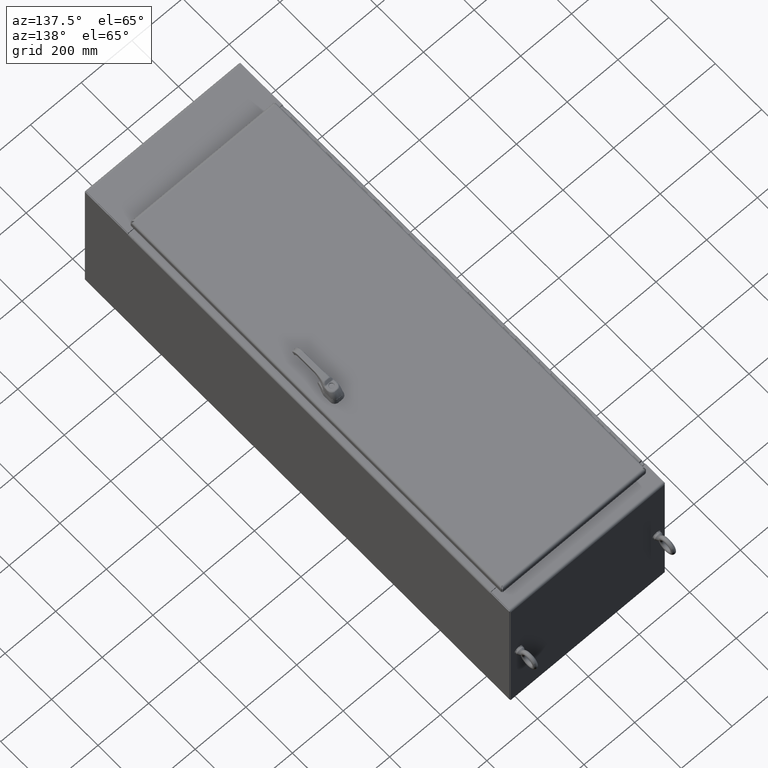
[diagram: clean part render]
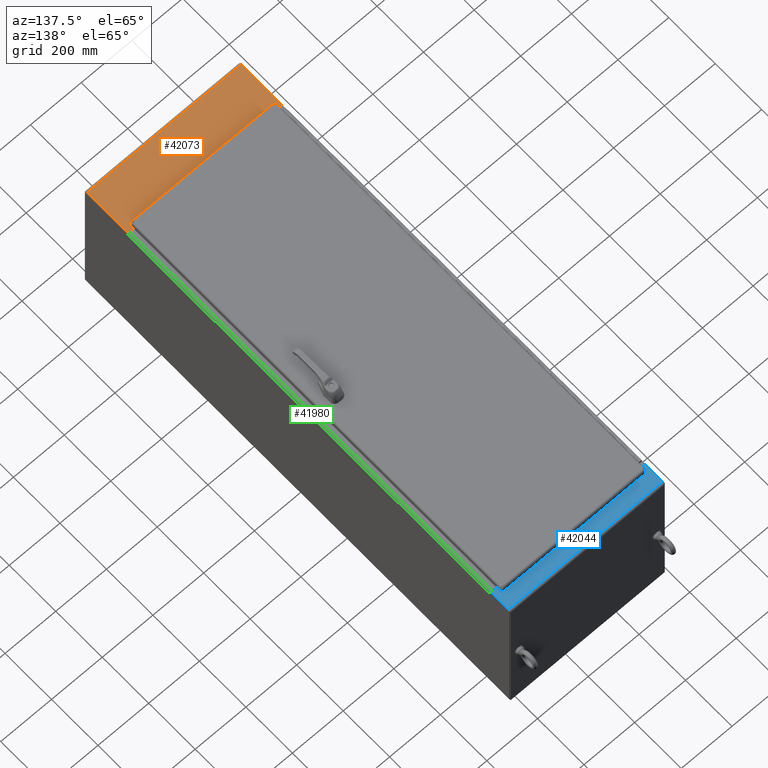
[diagram: same view with three faces highlighted in distinct colors, each labeled with its STEP entity id]
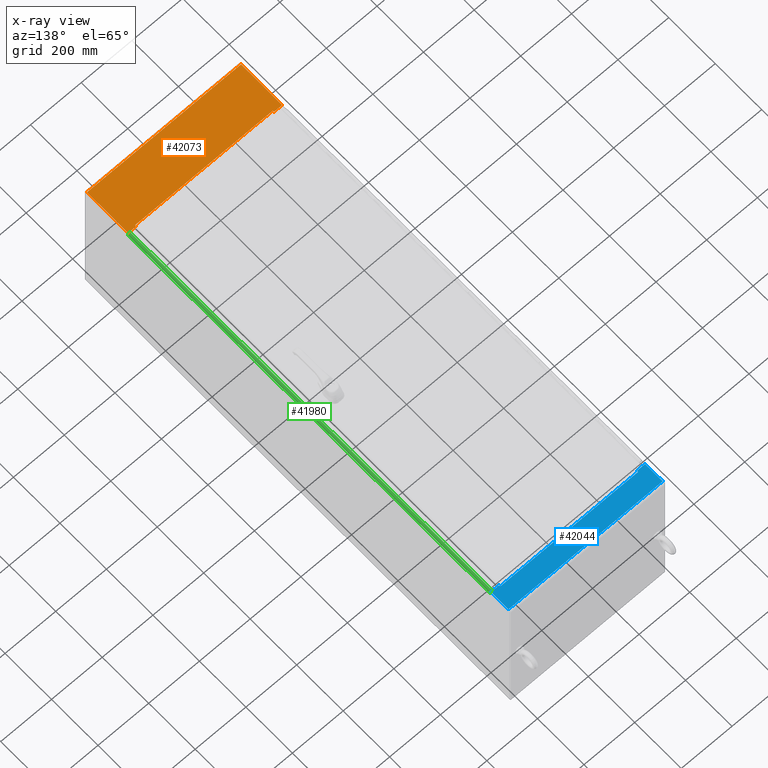
[diagram: x-ray of the same camera — body ghosted, the three highlighted faces saturated]
A machine part, auxiliary view with three faces highlighted in distinct colors.
The next image is the same camera in x-ray (body ghosted, the three faces saturated) — at least one of them is partly hidden behind the body in this view.
Their STEP definitions:

[orange] entity #42073 — the highlighted planar face has unit normal (0, -0, -1).
#2260=PLANE('',#45667);
#3387=FACE_OUTER_BOUND('',#6038,.T.);
#6038=EDGE_LOOP('',(#28416,#28417,#28418,#28419,#28420,#28421,#28422,#28423,
#28424,#28425,#28426,#28427));
#11392=LINE('',#63875,#14684);
#11396=LINE('',#63884,#14688);
#11402=LINE('',#63895,#14694);
#11405=LINE('',#63901,#14697);
#11428=LINE('',#63954,#14720);
#11430=LINE('',#63958,#14722);
#11431=LINE('',#63961,#14723);
#11433=LINE('',#63964,#14725);
#11434=LINE('',#63967,#14726);
#11436=LINE('',#63970,#14728);
#11437=LINE('',#63973,#14729);
#11438=LINE('',#63974,#14730);
#14684=VECTOR('',#50874,0.393700787401575);
#14688=VECTOR('',#50880,0.393700787401575);
#14694=VECTOR('',#50888,0.393700787401575);
#14697=VECTOR('',#50893,0.393700787401575);
#14720=VECTOR('',#50944,0.393700787401575);
#14722=VECTOR('',#50948,0.393700787401575);
#14723=VECTOR('',#50951,0.393700787401575);
#14725=VECTOR('',#50955,0.393700787401575);
#14726=VECTOR('',#50958,0.393700787401575);
#14728=VECTOR('',#50962,0.393700787401575);
#14729=VECTOR('',#50965,0.393700787401575);
#14730=VECTOR('',#50966,0.291079999999999);
#17914=VERTEX_POINT('',#63873);
#17915=VERTEX_POINT('',#63874);
#17918=VERTEX_POINT('',#63882);
#17919=VERTEX_POINT('',#63883);
#17923=VERTEX_POINT('',#63893);
#17925=VERTEX_POINT('',#63899);
#17939=VERTEX_POINT('',#63939);
#17940=VERTEX_POINT('',#63943);
#17942=VERTEX_POINT('',#63956);
#17943=VERTEX_POINT('',#63960);
#17944=VERTEX_POINT('',#63966);
#17945=VERTEX_POINT('',#63972);
#21910=EDGE_CURVE('',#17914,#17915,#11392,.T.);
#21914=EDGE_CURVE('',#17918,#17919,#11396,.T.);
#21920=EDGE_CURVE('',#17923,#17915,#11402,.T.);
#21923=EDGE_CURVE('',#17919,#17925,#11405,.T.);
#21950=EDGE_CURVE('',#17939,#17940,#11428,.T.);
#21952=EDGE_CURVE('',#17940,#17942,#11430,.T.);
#21953=EDGE_CURVE('',#17943,#17914,#11431,.T.);
#21955=EDGE_CURVE('',#17942,#17943,#11433,.T.);
#21956=EDGE_CURVE('',#17944,#17939,#11434,.T.);
#21958=EDGE_CURVE('',#17925,#17944,#11436,.T.);
#21959=EDGE_CURVE('',#17923,#17945,#11437,.T.);
#21960=EDGE_CURVE('',#17918,#17945,#11438,.T.);
#28416=ORIENTED_EDGE('',*,*,#21910,.T.);
#28417=ORIENTED_EDGE('',*,*,#21920,.F.);
#28418=ORIENTED_EDGE('',*,*,#21959,.T.);
#28419=ORIENTED_EDGE('',*,*,#21960,.F.);
#28420=ORIENTED_EDGE('',*,*,#21914,.T.);
#28421=ORIENTED_EDGE('',*,*,#21923,.T.);
#28422=ORIENTED_EDGE('',*,*,#21958,.T.);
#28423=ORIENTED_EDGE('',*,*,#21956,.T.);
#28424=ORIENTED_EDGE('',*,*,#21950,.T.);
#28425=ORIENTED_EDGE('',*,*,#21952,.T.);
#28426=ORIENTED_EDGE('',*,*,#21955,.T.);
#28427=ORIENTED_EDGE('',*,*,#21953,.T.);
#42073=ADVANCED_FACE('',(#3387),#2260,.F.);
#45667=AXIS2_PLACEMENT_3D('',#63971,#50963,#50964);
#50874=DIRECTION('',(-1.,2.33114446477517E-16,-1.16963345967814E-16));
#50880=DIRECTION('',(-1.,2.33114446477517E-16,-1.16963345967814E-16));
#50888=DIRECTION('',(1.03537993810258E-30,8.82055185704388E-15,1.));
#50893=DIRECTION('',(0.,-8.34356458383289E-15,-1.));
#50944=DIRECTION('',(-1.,2.33114446477519E-16,1.30873092187706E-16));
#50948=DIRECTION('',(0.,-8.34356458383289E-15,-1.));
#50951=DIRECTION('',(0.,8.34356458383289E-15,1.));
#50955=DIRECTION('',(-1.,2.33114446477518E-16,-3.13517899275702E-30));
#50958=DIRECTION('',(0.,8.34356458383289E-15,1.));
#50962=DIRECTION('',(-1.,2.33114446477518E-16,-3.13517899275702E-30));
#50963=DIRECTION('center_axis',(2.33114446477518E-16,1.,-8.34356458383289E-15));
#50964=DIRECTION('ref_axis',(1.,-2.33114446477519E-16,-1.16963345967813E-16));
#50965=DIRECTION('',(1.,-2.33114446477518E-16,1.02451680529856E-30));
#50966=DIRECTION('',(8.32771913999663E-32,7.28674596156E-16,-1.));
#63873=CARTESIAN_POINT('',(1.27080000000001,-24.0209999999999,7.32300000000001));
#63874=CARTESIAN_POINT('',(6.16124629073065E-15,-24.0209999999999,7.32300000000001));
#63875=CARTESIAN_POINT('',(6.61465000000001,-24.0209999999999,7.32300000000001));
#63882=CARTESIAN_POINT('',(23.917,-24.0209999999999,7.32300000000001));
#63883=CARTESIAN_POINT('',(22.6462,-24.0209999999999,7.32300000000001));
#63884=CARTESIAN_POINT('',(17.93775,-24.0209999999999,7.32300000000001));
#63893=CARTESIAN_POINT('',(6.97636384878034E-15,-24.021,0.354000000000004));
#63895=CARTESIAN_POINT('',(6.97636384878034E-15,-24.021,0.354000000000009));
#63899=CARTESIAN_POINT('',(22.6462,-24.0209999999999,7.13017500000001));
#63901=CARTESIAN_POINT('',(22.6462,-24.021,5.38303065129915));
#63939=CARTESIAN_POINT('',(22.646,-24.0209999999999,7.13037500000001));
#63943=CARTESIAN_POINT('',(1.27100000000001,-24.0209999999999,7.13037500000001));
#63954=CARTESIAN_POINT('',(6.61475000000001,-24.0209999999999,7.13037500000001));
#63956=CARTESIAN_POINT('',(1.27100000000001,-24.0209999999999,7.13017500000001));
#63958=CARTESIAN_POINT('',(1.27100000000001,-24.021,5.38303065129915));
#63960=CARTESIAN_POINT('',(1.27080000000001,-24.0209999999999,7.13017500000001));
#63961=CARTESIAN_POINT('',(1.27080000000001,-24.021,5.50544315129915));
#63964=CARTESIAN_POINT('',(6.61465000000001,-24.0209999999999,7.13017500000001));
#63966=CARTESIAN_POINT('',(22.646,-24.0209999999999,7.13017500000001));
#63967=CARTESIAN_POINT('',(22.646,-24.021,5.50544315129915));
#63970=CARTESIAN_POINT('',(17.30225,-24.0209999999999,7.13017500000001));
#63971=CARTESIAN_POINT('Origin',(11.9585,-24.021,3.63588630259829));
#63972=CARTESIAN_POINT('',(23.917,-24.021,0.354000000000006));
#63973=CARTESIAN_POINT('',(11.9585,-24.021,0.354000000000006));
#63974=CARTESIAN_POINT('',(23.917,-24.021,-0.560454789606909));

[blue] entity #42044 — the highlighted planar face has unit normal (0, -0, 1).
#2235=PLANE('',#45629);
#3358=FACE_OUTER_BOUND('',#6005,.T.);
#6005=EDGE_LOOP('',(#28280,#28281,#28282,#28283,#28284,#28285,#28286,#28287,
#28288,#28289,#28290,#28291));
#11329=LINE('',#63713,#14621);
#11333=LINE('',#63722,#14625);
#11339=LINE('',#63733,#14631);
#11340=LINE('',#63736,#14632);
#11368=LINE('',#63815,#14660);
#11370=LINE('',#63819,#14662);
#11371=LINE('',#63822,#14663);
#11373=LINE('',#63825,#14665);
#11375=LINE('',#63829,#14667);
#11376=LINE('',#63832,#14668);
#11378=LINE('',#63835,#14670);
#11379=LINE('',#63837,#14671);
#14621=VECTOR('',#50703,0.393700787401575);
#14625=VECTOR('',#50709,0.393700787401575);
#14631=VECTOR('',#50717,0.393700787401575);
#14632=VECTOR('',#50720,0.291079999999999);
#14660=VECTOR('',#50806,0.393700787401575);
#14662=VECTOR('',#50810,0.393700787401575);
#14663=VECTOR('',#50813,0.393700787401575);
#14665=VECTOR('',#50817,0.393700787401575);
#14667=VECTOR('',#50821,0.393700787401575);
#14668=VECTOR('',#50824,0.393700787401575);
#14670=VECTOR('',#50828,0.393700787401575);
#14671=VECTOR('',#50831,0.393700787401575);
#17869=VERTEX_POINT('',#63711);
#17870=VERTEX_POINT('',#63712);
#17873=VERTEX_POINT('',#63720);
#17874=VERTEX_POINT('',#63721);
#17878=VERTEX_POINT('',#63731);
#17879=VERTEX_POINT('',#63735);
#17900=VERTEX_POINT('',#63806);
#17901=VERTEX_POINT('',#63810);
#17902=VERTEX_POINT('',#63817);
#17903=VERTEX_POINT('',#63821);
#17904=VERTEX_POINT('',#63827);
#17905=VERTEX_POINT('',#63831);
#21831=EDGE_CURVE('',#17869,#17870,#11329,.T.);
#21835=EDGE_CURVE('',#17873,#17874,#11333,.T.);
#21841=EDGE_CURVE('',#17878,#17870,#11339,.T.);
#21842=EDGE_CURVE('',#17873,#17879,#11340,.T.);
#21882=EDGE_CURVE('',#17900,#17901,#11368,.T.);
#21884=EDGE_CURVE('',#17901,#17902,#11370,.T.);
#21885=EDGE_CURVE('',#17903,#17869,#11371,.T.);
#21887=EDGE_CURVE('',#17902,#17903,#11373,.T.);
#21889=EDGE_CURVE('',#17874,#17904,#11375,.T.);
#21890=EDGE_CURVE('',#17905,#17900,#11376,.T.);
#21892=EDGE_CURVE('',#17904,#17905,#11378,.T.);
#21893=EDGE_CURVE('',#17878,#17879,#11379,.T.);
#28280=ORIENTED_EDGE('',*,*,#21831,.T.);
#28281=ORIENTED_EDGE('',*,*,#21841,.F.);
#28282=ORIENTED_EDGE('',*,*,#21893,.T.);
#28283=ORIENTED_EDGE('',*,*,#21842,.F.);
#28284=ORIENTED_EDGE('',*,*,#21835,.T.);
#28285=ORIENTED_EDGE('',*,*,#21889,.T.);
#28286=ORIENTED_EDGE('',*,*,#21892,.T.);
#28287=ORIENTED_EDGE('',*,*,#21890,.T.);
#28288=ORIENTED_EDGE('',*,*,#21882,.T.);
#28289=ORIENTED_EDGE('',*,*,#21884,.T.);
#28290=ORIENTED_EDGE('',*,*,#21887,.T.);
#28291=ORIENTED_EDGE('',*,*,#21885,.T.);
#42044=ADVANCED_FACE('',(#3358),#2235,.T.);
#45629=AXIS2_PLACEMENT_3D('',#63836,#50829,#50830);
#50703=DIRECTION('',(1.,-4.52156312168464E-16,1.02536134747164E-30));
#50709=DIRECTION('',(1.,-4.52156312168466E-16,2.7516253005117E-16));
#50717=DIRECTION('',(1.03537993810258E-30,8.82055185704388E-15,-1.));
#50720=DIRECTION('',(-1.04079422533351E-30,-8.88178419700125E-15,1.));
#50806=DIRECTION('',(1.,-4.52156312168463E-16,-1.30873092187705E-16));
#50810=DIRECTION('',(0.,-7.72921844719054E-15,1.));
#50813=DIRECTION('',(0.,7.72921844719054E-15,-1.));
#50817=DIRECTION('',(1.,-4.52156312168464E-16,-3.04054723500324E-30));
#50821=DIRECTION('',(0.,-7.72921844719054E-15,1.));
#50824=DIRECTION('',(0.,7.72921844719054E-15,-1.));
#50828=DIRECTION('',(1.,-4.52156312168464E-16,-3.04054723500324E-30));
#50829=DIRECTION('center_axis',(-4.52156312168464E-16,-1.,-7.72921844719054E-15));
#50830=DIRECTION('ref_axis',(1.,-4.52156312168465E-16,1.16963345967811E-16));
#50831=DIRECTION('',(-1.,4.52156312168464E-16,2.95658694048919E-30));
#63711=CARTESIAN_POINT('',(22.6462,-24.021,-3.21899999999999));
#63712=CARTESIAN_POINT('',(23.917,-24.021,-3.21899999999999));
#63713=CARTESIAN_POINT('',(17.30235,-24.021,-3.21899999999999));
#63720=CARTESIAN_POINT('',(4.15471349379574E-15,-24.021,-3.219));
#63721=CARTESIAN_POINT('',(1.27080000000001,-24.021,-3.219));
#63722=CARTESIAN_POINT('',(5.97925,-24.021,-3.219));
#63731=CARTESIAN_POINT('',(23.917,-24.021,-0.250000000000002));
#63733=CARTESIAN_POINT('',(23.917,-24.021,-0.250000000000002));
#63735=CARTESIAN_POINT('',(4.15471349379573E-15,-24.021,-0.250000000000002));
#63736=CARTESIAN_POINT('',(4.15471349379573E-15,-24.021,0.664454789606911));
#63806=CARTESIAN_POINT('',(1.271,-24.021,-3.026375));
#63810=CARTESIAN_POINT('',(22.646,-24.021,-3.026375));
#63815=CARTESIAN_POINT('',(17.30225,-24.021,-3.026375));
#63817=CARTESIAN_POINT('',(22.646,-24.021,-3.026175));
#63819=CARTESIAN_POINT('',(22.646,-24.021,-2.27903065129914));
#63821=CARTESIAN_POINT('',(22.6462,-24.021,-3.026175));
#63822=CARTESIAN_POINT('',(22.6462,-24.021,-2.40144315129914));
#63825=CARTESIAN_POINT('',(17.30235,-24.021,-3.026175));
#63827=CARTESIAN_POINT('',(1.2708,-24.021,-3.026175));
#63829=CARTESIAN_POINT('',(1.2708,-24.021,-2.27903065129914));
#63831=CARTESIAN_POINT('',(1.271,-24.021,-3.026175));
#63832=CARTESIAN_POINT('',(1.271,-24.021,-2.40144315129914));
#63835=CARTESIAN_POINT('',(6.61475,-24.021,-3.026175));
#63836=CARTESIAN_POINT('Origin',(11.9585,-24.021,-1.53188630259828));
#63837=CARTESIAN_POINT('',(11.9585,-24.021,-0.250000000000005));

[green] entity #41980 — the highlighted cylindrical surface (edge-blend (fillet) strip) has radius 8.9916 mm, axis along (0, -1, -0).
#3294=FACE_OUTER_BOUND('',#5939,.T.);
#5939=EDGE_LOOP('',(#28000,#28001,#28002,#28003));
#8929=CIRCLE('',#45537,0.354000000000001);
#8930=CIRCLE('',#45538,0.354000000000004);
#11265=LINE('',#63550,#14557);
#11266=LINE('',#63554,#14558);
#14557=VECTOR('',#50531,0.393700787401575);
#14558=VECTOR('',#50534,0.393700787401575);
#17795=VERTEX_POINT('',#63449);
#17825=VERTEX_POINT('',#63549);
#17826=VERTEX_POINT('',#63551);
#17827=VERTEX_POINT('',#63553);
#21751=EDGE_CURVE('',#17795,#17825,#11265,.T.);
#21752=EDGE_CURVE('',#17826,#17795,#8929,.T.);
#21753=EDGE_CURVE('',#17827,#17826,#11266,.T.);
#21754=EDGE_CURVE('',#17825,#17827,#8930,.T.);
#28000=ORIENTED_EDGE('',*,*,#21751,.F.);
#28001=ORIENTED_EDGE('',*,*,#21752,.F.);
#28002=ORIENTED_EDGE('',*,*,#21753,.F.);
#28003=ORIENTED_EDGE('',*,*,#21754,.F.);
#40182=CYLINDRICAL_SURFACE('',#45536,0.354);
#41980=ADVANCED_FACE('',(#3294),#40182,.T.);
#45536=AXIS2_PLACEMENT_3D('',#63548,#50529,#50530);
#45537=AXIS2_PLACEMENT_3D('',#63552,#50532,#50533);
#45538=AXIS2_PLACEMENT_3D('',#63555,#50535,#50536);
#50529=DIRECTION('center_axis',(7.8237127595836E-17,-1.,-2.36551603237024E-33));
#50530=DIRECTION('ref_axis',(1.,7.8237127595836E-17,-5.35732361623578E-15));
#50531=DIRECTION('',(-7.82371275958362E-17,1.,-1.4479169266578E-17));
#50532=DIRECTION('center_axis',(7.8237127595836E-17,-1.,-2.36551603237024E-33));
#50533=DIRECTION('ref_axis',(1.,0.,-7.9022947613339E-15));
#50534=DIRECTION('',(7.73540314075821E-17,-1.,0.));
#50535=DIRECTION('center_axis',(-7.8237127595836E-17,1.,2.36551603237024E-33));
#50536=DIRECTION('ref_axis',(1.58045895226677E-14,0.,1.));
#63449=CARTESIAN_POINT('',(23.7710000000001,-64.646,24.125));
#63548=CARTESIAN_POINT('Origin',(23.7710000000001,-33.9585,23.771));
#63549=CARTESIAN_POINT('',(23.7710000000001,-3.271,24.125));
#63550=CARTESIAN_POINT('',(23.7710000000001,-33.9585,24.125));
#63551=CARTESIAN_POINT('',(24.1250000000001,-64.646,23.771));
#63552=CARTESIAN_POINT('Origin',(23.7710000000001,-64.646,23.771));
#63553=CARTESIAN_POINT('',(24.1250000000001,-3.271,23.771));
#63554=CARTESIAN_POINT('',(24.1250000000001,-19.61475,23.771));
#63555=CARTESIAN_POINT('Origin',(23.7710000000001,-3.271,23.771));